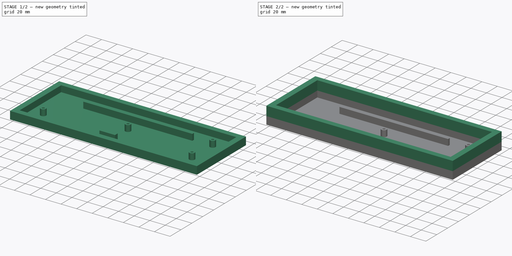
[diagram: build sequence overview — one tinted view per stage of 2, left to right]
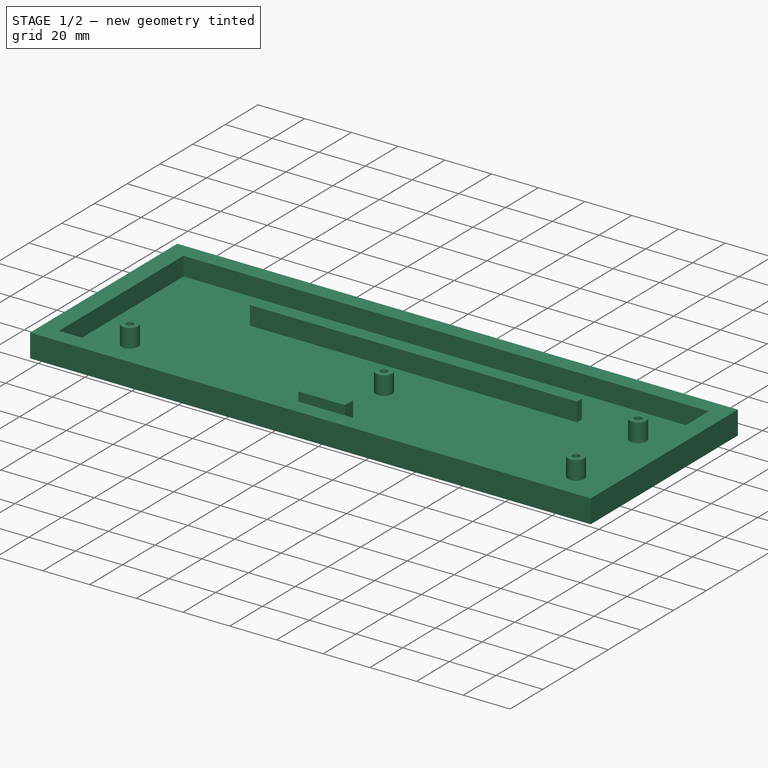
[diagram: stage 1 of 2 — iso view after this stage's code; geometry added in this stage tinted green]
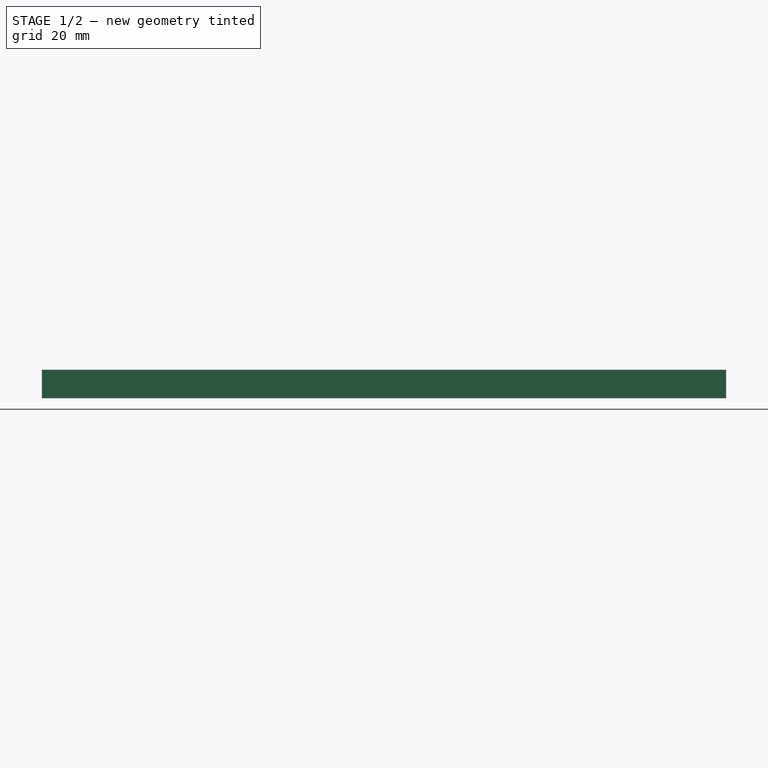
[diagram: stage 1 of 2 — front view after this stage's code; geometry added in this stage tinted green]
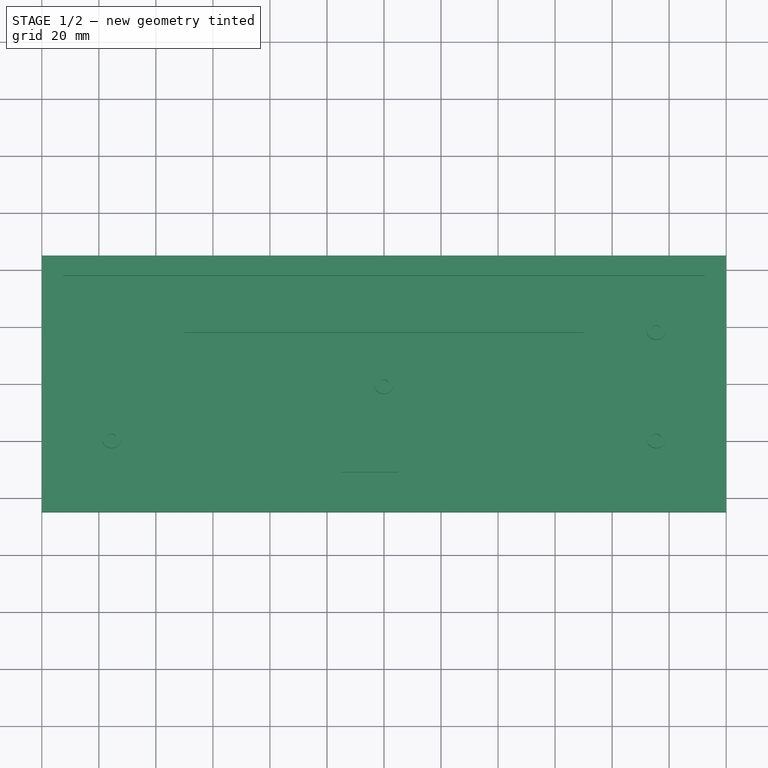
[diagram: stage 1 of 2 — top view after this stage's code; geometry added in this stage tinted green]
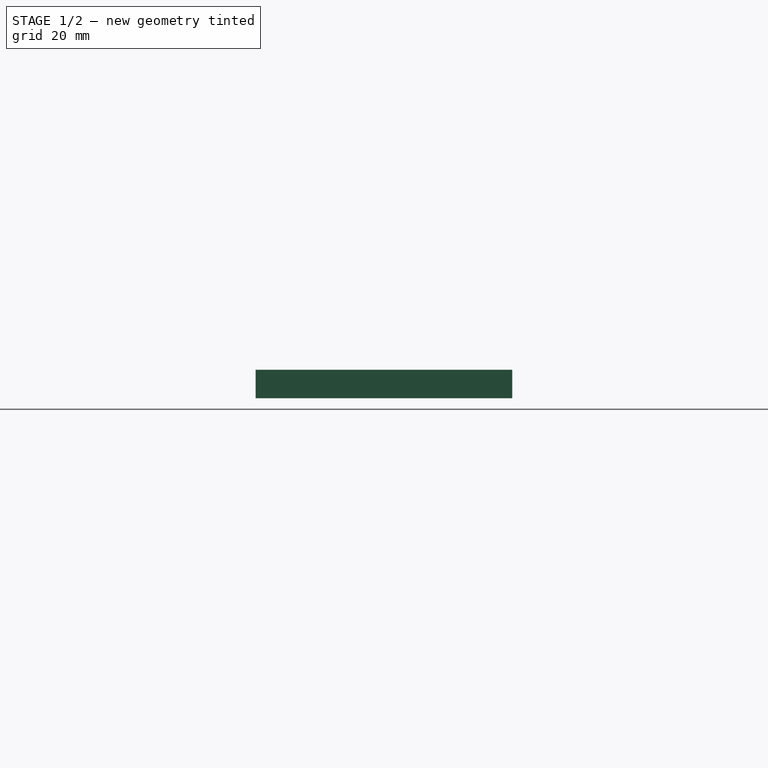
[diagram: stage 1 of 2 — right view after this stage's code; geometry added in this stage tinted green]
FCSTD DOCUMENT  (FreeCAD 0.20R)
Label: bm43a-test
License: All rights reserved
LicenseURL: http://en.wikipedia.org/wiki/All_rights_reserved
objects: Sketcher::SketchObject×2, PartDesign::Pad×2, PartDesign::Pocket×1, PartDesign::Body×1
note: 9 computed .brp shape members not serialized (recipe doc carries the construction recipe); baked Part::Feature solids carry a one-line shape summary decoded from their .brp

FEATURE [Sketcher::SketchObject] Sketch
  FullyConstrained = true
  MapMode = 5
  Support = -> [XY_Plane]
  sketch-geometry (4):
    g0: LineSegment StartX=-120 StartY=45 StartZ=0 EndX=120 EndY=45 EndZ=0
    g1: LineSegment StartX=120 StartY=45 StartZ=0 EndX=120 EndY=-45 EndZ=0
    g2: LineSegment StartX=120 StartY=-45 StartZ=0 EndX=-120 EndY=-45 EndZ=0
    g3: LineSegment StartX=-120 StartY=-45 StartZ=0 EndX=-120 EndY=45 EndZ=0
  constraints (11):
    c: Coincident(g0,g1)
    c: Coincident(g1,g2)
    c: Coincident(g2,g3)
    c: Coincident(g3,g0)
    c: Horizontal(g0)
    c: Horizontal(g2)
    c: Vertical(g1)
    c: Vertical(g3)
    c: Symmetric(g0,g1,g-1)
    c: DistanceX(g0,g0) = 240
    c: DistanceY(g1,g1) = 90
FEATURE [PartDesign::Pad] Pad
  Direction = (0,0,1)
  Length = 10
  Length2 = 10
  Profile = -> Sketch
  ReferenceAxis = -> Sketch [N_Axis]
  Type = 0
FEATURE [Sketcher::SketchObject] Sketch001
  ExternalGeometry = -> [Pad]
  FullyConstrained = true
  MapMode = 5
  Placement = pos=(0,0,10) rot=(0,0,1;0rad)
  Support = -> [Pad]
  sketch-geometry (29):
    g0: LineSegment StartX=-112.5 StartY=38 StartZ=0 EndX=112.5 EndY=38 EndZ=0
    g1: LineSegment StartX=112.5 StartY=38 StartZ=0 EndX=112.5 EndY=-38 EndZ=0
    g2: LineSegment StartX=112.5 StartY=-38 StartZ=0 EndX=-112.5 EndY=-38 EndZ=0
    g3: LineSegment StartX=-112.5 StartY=-38 StartZ=0 EndX=-112.5 EndY=38 EndZ=0
    g4: Circle CenterX=0 CenterY=0 CenterZ=0 NormalX=0 NormalY=0 NormalZ=1 AngleXU=0 Radius=3.5
    g5: LineSegment StartX=-95.5 StartY=0 StartZ=0 EndX=95.5 EndY=0 EndZ=0
    g6: LineSegment StartX=95.5 StartY=38 StartZ=0 EndX=95.5 EndY=-38 EndZ=0
    g7: GeomPoint X=95.5 Y=19 Z=0
    g8: GeomPoint X=95.5 Y=-19 Z=0
    g9: LineSegment StartX=-95.5 StartY=38 StartZ=0 EndX=-95.5 EndY=-38 EndZ=0
    g10: GeomPoint X=-95.5 Y=-19 Z=0
    g11: Circle CenterX=-95.5 CenterY=-19 CenterZ=0 NormalX=0 NormalY=0 NormalZ=1 AngleXU=0 Radius=3.5
    g12: Circle CenterX=95.5 CenterY=19 CenterZ=0 NormalX=0 NormalY=0 NormalZ=1 AngleXU=0 Radius=3.5
    g13: Circle CenterX=95.5 CenterY=-19 CenterZ=0 NormalX=0 NormalY=0 NormalZ=1 AngleXU=0 Radius=3.5
    g14: LineSegment StartX=-95.5 StartY=21 StartZ=0 EndX=95.5 EndY=21 EndZ=0
    g15: GeomPoint X=0 Y=21 Z=0
    g16: LineSegment StartX=-70 StartY=21 StartZ=0 EndX=70 EndY=21 EndZ=0
    g17: LineSegment StartX=70 StartY=21 StartZ=0 EndX=70 EndY=18 EndZ=0
    g18: LineSegment StartX=70 StartY=18 StartZ=0 EndX=-70 EndY=18 EndZ=0
    g19: LineSegment StartX=-70 StartY=18 StartZ=0 EndX=-70 EndY=21 EndZ=0
    g20: LineSegment StartX=-95.5 StartY=-31 StartZ=0 EndX=95.5 EndY=-31 EndZ=0
    g21: LineSegment StartX=5 StartY=-31 StartZ=0 EndX=-15 EndY=-31 EndZ=0
    g22: LineSegment StartX=-15 StartY=-31 StartZ=0 EndX=-15 EndY=-26 EndZ=0
    g23: LineSegment StartX=-15 StartY=-26 StartZ=0 EndX=5 EndY=-26 EndZ=0
    g24: LineSegment StartX=5 StartY=-26 StartZ=0 EndX=5 EndY=-31 EndZ=0
    g25: Circle CenterX=-95.5 CenterY=-19 CenterZ=0 NormalX=0 NormalY=0 NormalZ=1 AngleXU=0 Radius=1.5
    g26: Circle CenterX=95.5 CenterY=19 CenterZ=0 NormalX=0 NormalY=0 NormalZ=1 AngleXU=0 Radius=1.5
    g27: Circle CenterX=95.5 CenterY=-19 CenterZ=0 NormalX=0 NormalY=0 NormalZ=1 AngleXU=0 Radius=1.5
    g28: Circle CenterX=0 CenterY=0 CenterZ=0 NormalX=0 NormalY=0 NormalZ=1 AngleXU=0 Radius=1.5
  constraints (74):
    c: Coincident(g0,g1)
    c: Coincident(g1,g2)
    c: Coincident(g2,g3)
    c: Coincident(g3,g0)
    c: Horizontal(g0)
    c: Horizontal(g2)
    c: Vertical(g1)
    c: Vertical(g3)
    c: Coincident(g4,g-1)
    c: Symmetric(g0,g1,g4)
    c: DistanceX(g0,g0) = 225
    c: DistanceY(g3,g3) = 76
    c: Diameter(g4) = 7
    c: PointOnObject(g5,g-1)
    c: Symmetric(g5,g5,g4)
    c: DistanceX(g5,g5) = 191
    c: PointOnObject(g6,g0)
    c: PointOnObject(g6,g2)
    c: Vertical(g6)
    c: PointOnObject(g5,g6)
    c: Symmetric(g5,g6,g7)
    c: Symmetric(g5,g6,g8)
    c: PointOnObject(g9,g0)
    c: PointOnObject(g9,g2)
    c: Vertical(g9)
    c: PointOnObject(g5,g9)
    c: Symmetric(g5,g9,g10)
    c: Coincident(g11,g10)
    c: Coincident(g12,g7)
    c: Coincident(g13,g8)
    c: Equal(g11,g4)
    c: Equal(g4,g12)
    c: Equal(g12,g13)
    c: PointOnObject(g14,g9)
    c: PointOnObject(g14,g6)
    c: Horizontal(g14)
    c: DistanceY(g5,g14) = 21
    c: PointOnObject(g15,g14)
    c: Coincident(g16,g17)
    c: Coincident(g17,g18)
    c: Coincident(g18,g19)
    c: Coincident(g19,g16)
    c: Horizontal(g16)
    c: Horizontal(g18)
    c: Vertical(g17)
    c: Vertical(g19)
    c: Symmetric(g16,g16,g15)
    c: Vertical(g15,g4)
    c: DistanceX(g18,g18) = 140
    c: DistanceY(g19,g19) = 3
    c: PointOnObject(g20,g9)
    c: PointOnObject(g20,g6)
    c: Horizontal(g20)
    c: DistanceY(g20,g5) = 31
    c: Coincident(g21,g22)
    c: Coincident(g22,g23)
    c: Coincident(g23,g24)
    c: Coincident(g24,g21)
    c: Horizontal(g21)
    c: Horizontal(g23)
    c: Vertical(g22)
    c: Vertical(g24)
    c: PointOnObject(g21,g20)
    c: DistanceX(g4,g21) = 5
    c: DistanceX(g21,g4) = 15
    c: DistanceY(g22,g22) = 5
    c: Coincident(g25,g11)
    c: Coincident(g26,g12)
    c: Coincident(g27,g13)
    c: Equal(g26,g27)
    c: Equal(g27,g25)
    c: Diameter(g25) = 3
    c: Coincident(g28,g4)
    c: Equal(g26,g28)
FEATURE [PartDesign::Pocket] Pocket
  BaseFeature = -> Pad
  Direction = (0,0,-1)
  Length = 0
  Length2 = 5
  Offset = -2
  Profile = -> Sketch001
  ReferenceAxis = -> Sketch001 [N_Axis]
  Type = 3
  UpToFace = -> Pad [Face5]
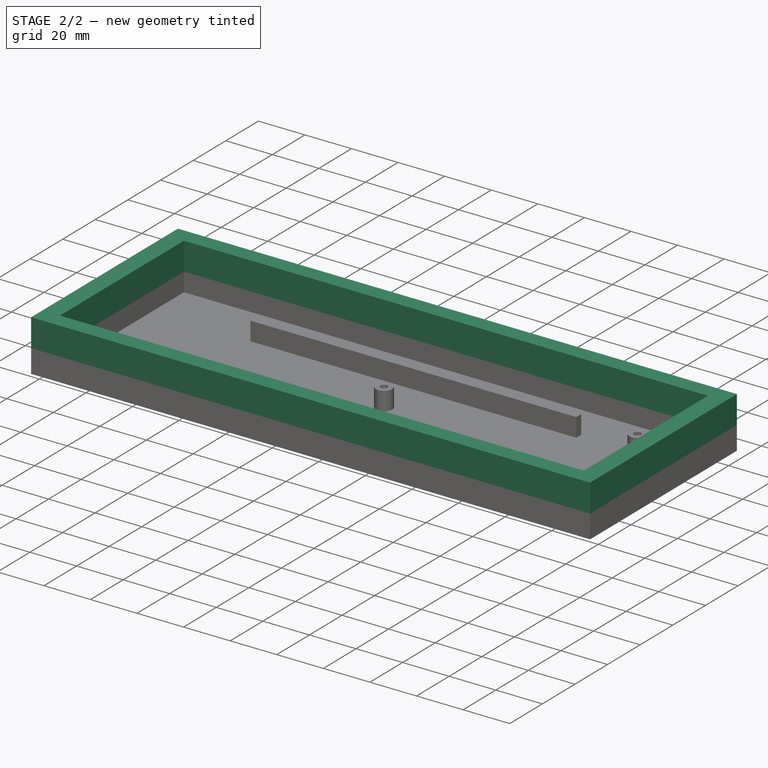
[diagram: stage 2 of 2 — iso view after this stage's code; geometry added in this stage tinted green]
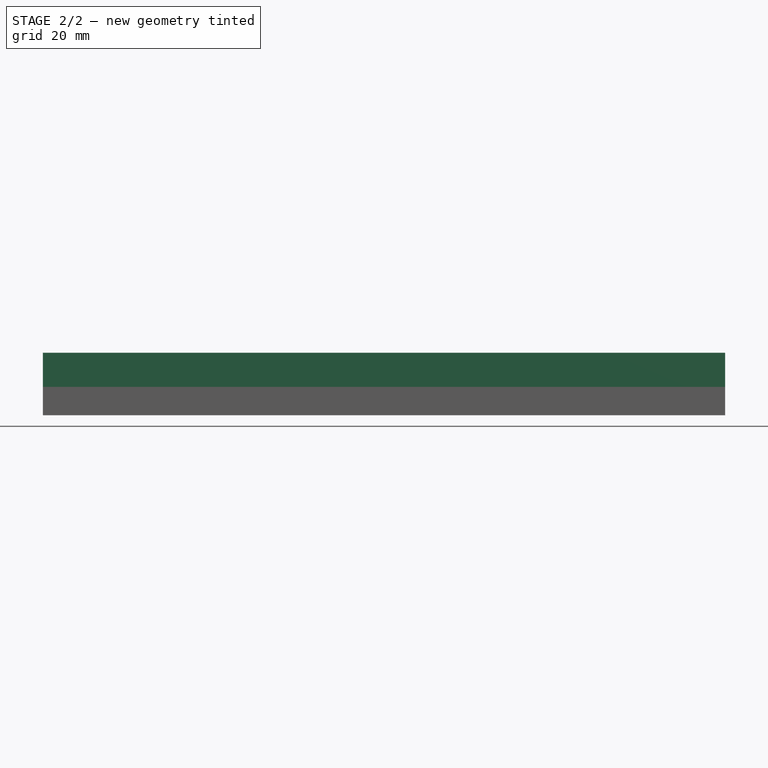
[diagram: stage 2 of 2 — front view after this stage's code; geometry added in this stage tinted green]
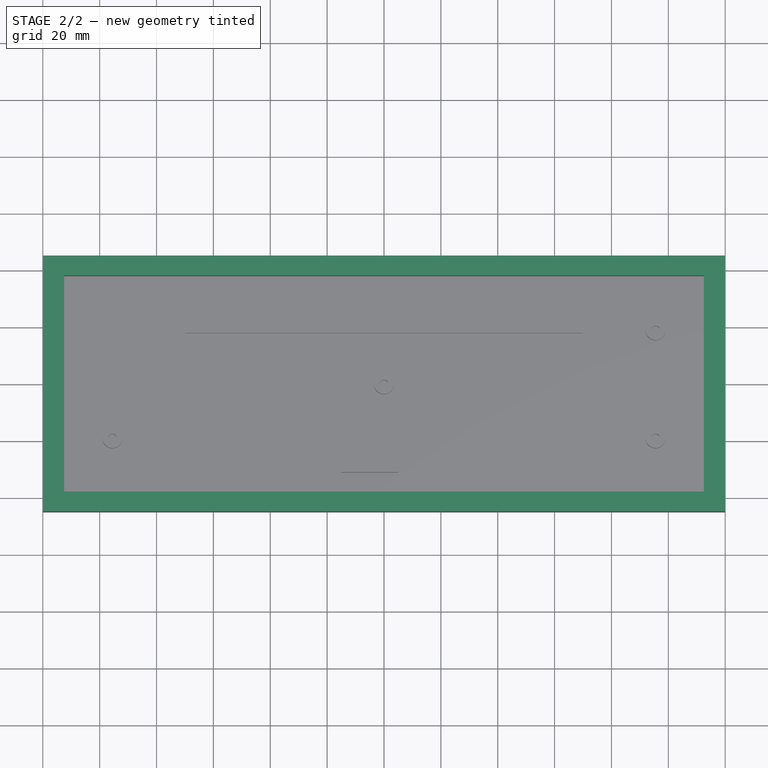
[diagram: stage 2 of 2 — top view after this stage's code; geometry added in this stage tinted green]
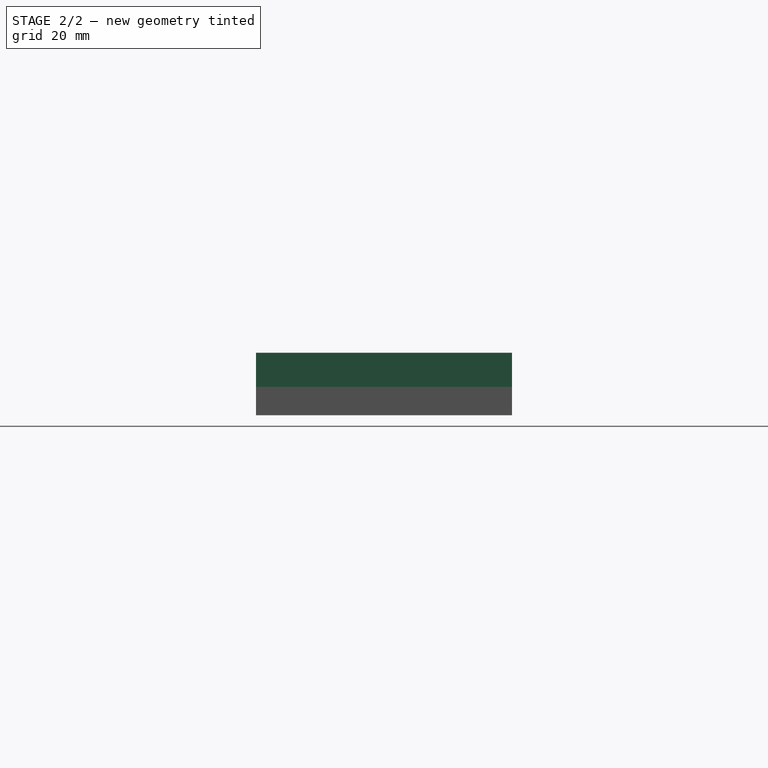
[diagram: stage 2 of 2 — right view after this stage's code; geometry added in this stage tinted green]
FEATURE [PartDesign::Pad] Pad001
  BaseFeature = -> Pocket
  Direction = (0,0,1)
  Length = 12
  Length2 = 10
  Profile = -> Pocket [Face5]
  Type = 0
FEATURE [PartDesign::Body] Body
  Group = -> [Sketch,Pad,Sketch001,Pocket,Pad001]
  Origin = -> Origin
  Tip = -> Pad001
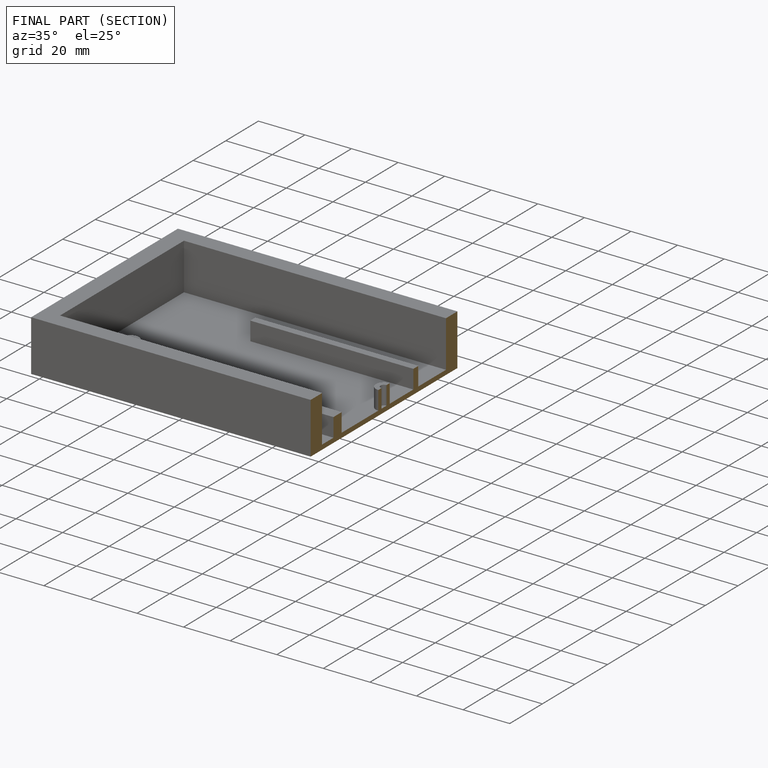
[diagram: finished part — half-section view (interior)]
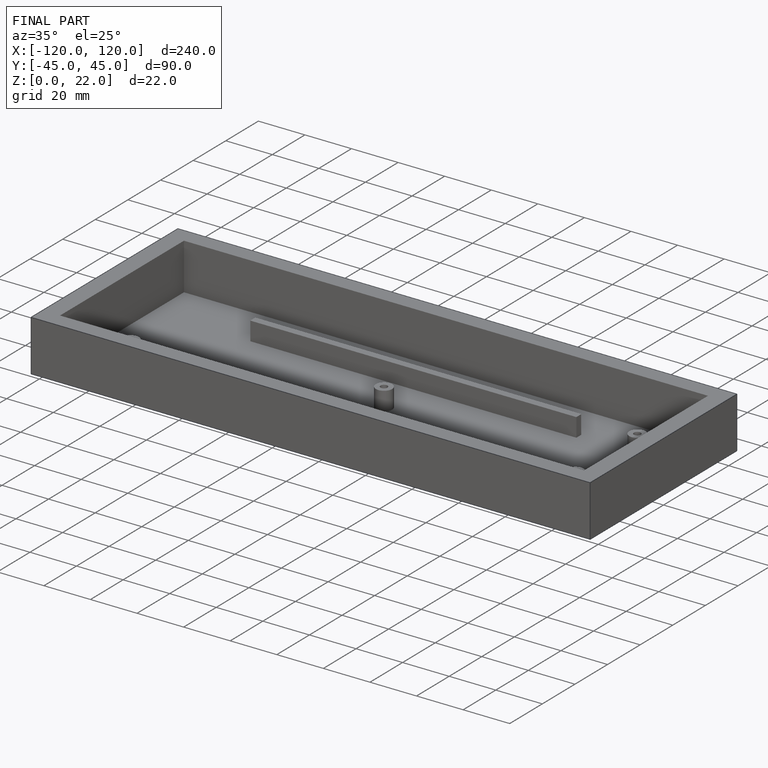
[diagram: finished part — iso view with bounding-box wireframe]
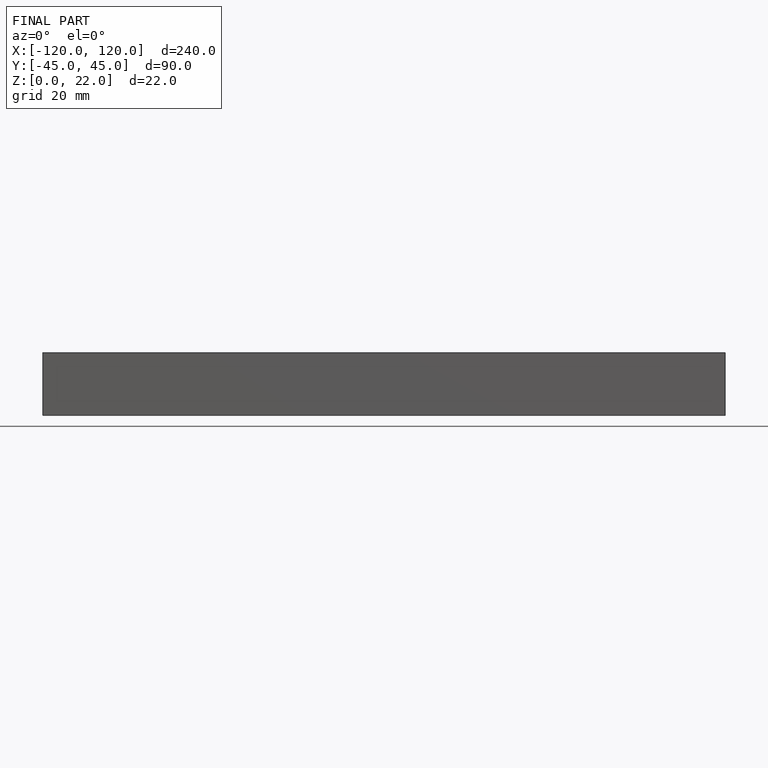
[diagram: finished part — front view with bounding-box wireframe]
